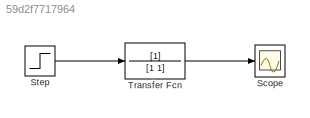
MODEL slx_59d2f7717964
KIND model
CONFIG AbsTol = auto
CONFIG EnableMultiTasking = off
CONFIG FixedStep = auto
CONFIG MaxStep = auto
CONFIG MinStep = auto
CONFIG RelTol = 1e-3
CONFIG SampleTimeConstraint = Unconstrained
CONFIG SolverName = VariableStepAuto
CONFIG StartTime = 0.0
CONFIG StopTime = 6
BLOCK [Scope] Scope
  Floating = off
  NumInputPorts = 1
  ScopeSpecificationString = Simulink.scopes.TimeScopeBlockCfg('CurrentConfiguration', extmgr.ConfigurationSet(extmgr.Configuration('Core','General UI',true),extmgr.Configuration('Core','Source UI',true),extmgr.Configuration('Sources','WiredSimulink',true,'SampleTime','0.1'),extmgr.Configuration('Visuals','Time Domain',true,'SerializedDisplays',{struct('MinYLimReal','-0.12466','MaxYLimReal','1.12192','YLabelReal','Amplitude',...<+1485ch>
BLOCK [Step] Step
  SampleTime = 0
  Time = 0.1
BLOCK [TransferFcn] Transfer Fcn
  Denominator = [1 1]
LINE Step:1 -> Transfer Fcn:1
LINE Transfer Fcn:1 -> Scope:1
